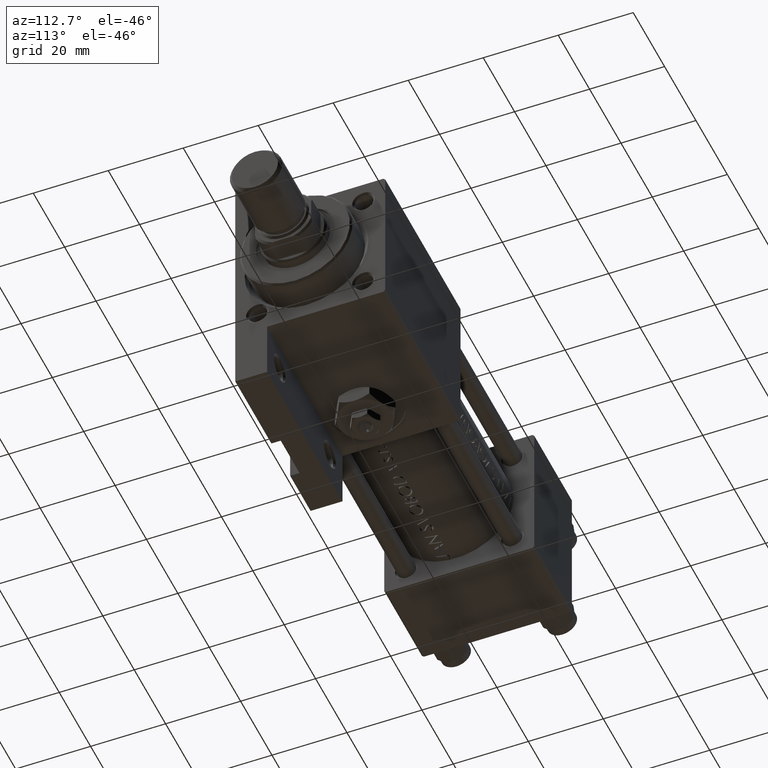
[diagram: clean part render]
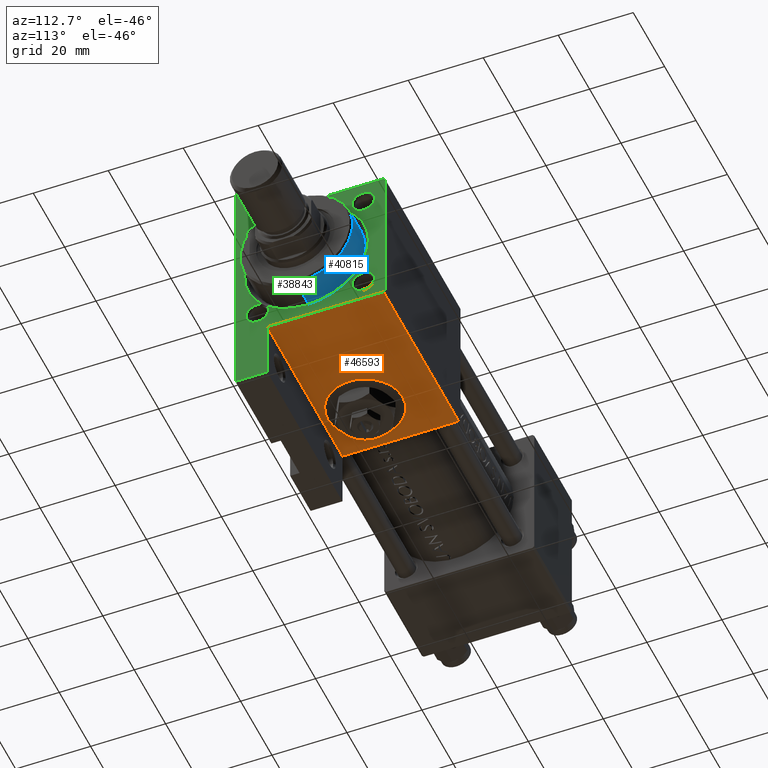
[diagram: same view with three faces highlighted in distinct colors, each labeled with its STEP entity id]
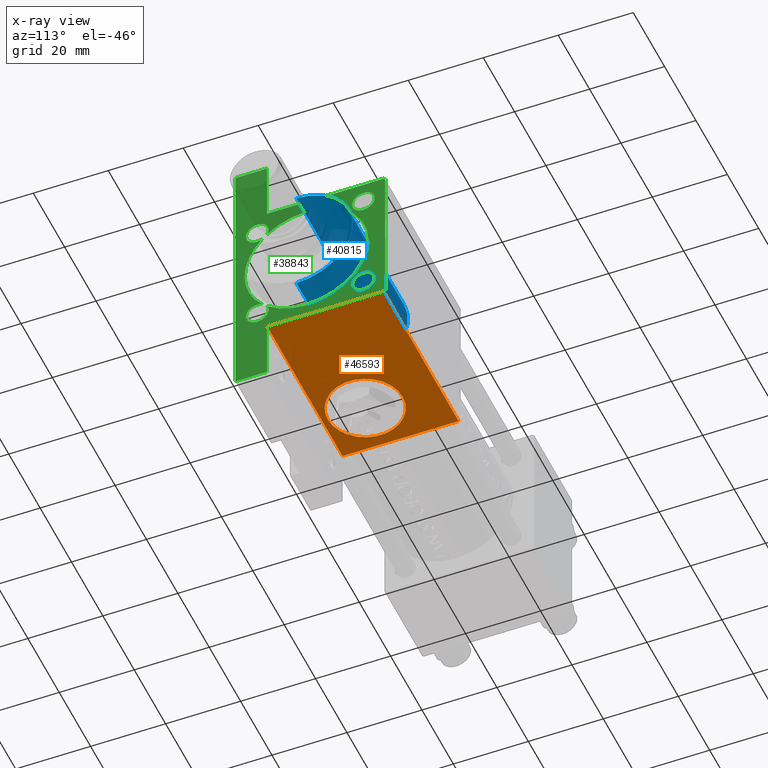
[diagram: x-ray of the same camera — body ghosted, the three highlighted faces saturated]
A machine part, auxiliary view with three faces highlighted in distinct colors.
The next image is the same camera in x-ray (body ghosted, the three faces saturated) — at least one of them is partly hidden behind the body in this view.
Their STEP definitions:

[orange] entity #46593 — the highlighted planar face has unit normal (0, 0, -1).
#1073 = CARTESIAN_POINT ( 'NONE',  ( 119.0000000000000142, 19.99999999999999645, 19.50000000000000000 ) ) ;
#1145 = EDGE_CURVE ( 'NONE', #7242, #7184, #20211, .T. ) ;
#1791 = VECTOR ( 'NONE', #31734, 1000.000000000000000 ) ;
#2823 = VERTEX_POINT ( 'NONE', #8525 ) ;
#6765 = VECTOR ( 'NONE', #43109, 1000.000000000000000 ) ;
#7184 = VERTEX_POINT ( 'NONE', #37805 ) ;
#7242 = VERTEX_POINT ( 'NONE', #30247 ) ;
#7690 = DIRECTION ( 'NONE',  ( -0.000000000000000000, 1.000000000000000000, 0.000000000000000000 ) ) ;
#8525 = CARTESIAN_POINT ( 'NONE',  ( 118.9999999999999858, 20.00000000000000000, -11.50000000000000000 ) ) ;
#8829 = CARTESIAN_POINT ( 'NONE',  ( 119.0000000000000142, 19.99999999999999645, 20.00000000000000000 ) ) ;
#9282 = ORIENTED_EDGE ( 'NONE', *, *, #1145, .T. ) ;
#9892 = DIRECTION ( 'NONE',  ( 0.000000000000000000, 1.000000000000000000, 0.000000000000000000 ) ) ;
#11179 = EDGE_LOOP ( 'NONE', ( #33234, #30928 ) ) ;
#13820 = CIRCLE ( 'NONE', #29093, 10.00000000000153300 ) ;
#14178 = EDGE_CURVE ( 'NONE', #16529, #41623, #13820, .T. ) ;
#14385 = EDGE_CURVE ( 'NONE', #7184, #2823, #35509, .T. ) ;
#14995 = CARTESIAN_POINT ( 'NONE',  ( 119.0000000000000142, 19.99999999999999645, 20.00000000000000000 ) ) ;
#16065 = LINE ( 'NONE', #23869, #48510 ) ;
#16529 = VERTEX_POINT ( 'NONE', #44127 ) ;
#16675 = FACE_OUTER_BOUND ( 'NONE', #48516, .T. ) ;
#17197 = CARTESIAN_POINT ( 'NONE',  ( 84.00000000000000000, 19.99999999999999645, 0.000000000000000000 ) ) ;
#17834 = EDGE_CURVE ( 'NONE', #2823, #49389, #16065, .T. ) ;
#20211 = LINE ( 'NONE', #1073, #6765 ) ;
#20215 = AXIS2_PLACEMENT_3D ( 'NONE', #14995, #7690, #26825 ) ;
#20559 = LINE ( 'NONE', #39675, #30952 ) ;
#20888 = EDGE_CURVE ( 'NONE', #7242, #49389, #20559, .T. ) ;
#21573 = DIRECTION ( 'NONE',  ( 0.000000000000000000, 0.000000000000000000, 1.000000000000000000 ) ) ;
#21997 = CARTESIAN_POINT ( 'NONE',  ( 84.00000000000000000, 19.99999999999999645, -10.00000000000153300 ) ) ;
#23763 = CARTESIAN_POINT ( 'NONE',  ( 71.00000000000001421, 19.99999999999999645, -11.50000000000000000 ) ) ;
#23869 = CARTESIAN_POINT ( 'NONE',  ( 71.00000000000000000, 19.99999999999995381, -11.50000000000000000 ) ) ;
#24132 = CIRCLE ( 'NONE', #49052, 10.00000000000153300 ) ;
#26825 = DIRECTION ( 'NONE',  ( 0.000000000000000000, -0.000000000000000000, 1.000000000000000000 ) ) ;
#29093 = AXIS2_PLACEMENT_3D ( 'NONE', #17197, #9892, #32550 ) ;
#30247 = CARTESIAN_POINT ( 'NONE',  ( 71.00000000000001421, 19.99999999999999645, 19.50000000000000000 ) ) ;
#30838 = PLANE ( 'NONE',  #20215 ) ;
#30928 = ORIENTED_EDGE ( 'NONE', *, *, #41300, .F. ) ;
#30952 = VECTOR ( 'NONE', #32128, 1000.000000000000000 ) ;
#31734 = DIRECTION ( 'NONE',  ( 0.000000000000000000, 0.000000000000000000, -1.000000000000000000 ) ) ;
#32128 = DIRECTION ( 'NONE',  ( 0.000000000000000000, 0.000000000000000000, -1.000000000000000000 ) ) ;
#32550 = DIRECTION ( 'NONE',  ( 0.000000000000000000, 0.000000000000000000, 1.000000000000000000 ) ) ;
#33149 = CARTESIAN_POINT ( 'NONE',  ( 84.00000000000000000, 19.99999999999999645, 0.000000000000000000 ) ) ;
#33234 = ORIENTED_EDGE ( 'NONE', *, *, #14178, .F. ) ;
#35509 = LINE ( 'NONE', #8829, #1791 ) ;
#37805 = CARTESIAN_POINT ( 'NONE',  ( 119.0000000000000142, 19.99999999999999645, 19.50000000000000000 ) ) ;
#39212 = DIRECTION ( 'NONE',  ( -1.000000000000000000, -9.396418828207708382E-16, -0.000000000000000000 ) ) ;
#39442 = ORIENTED_EDGE ( 'NONE', *, *, #14385, .T. ) ;
#39675 = CARTESIAN_POINT ( 'NONE',  ( 71.00000000000001421, 19.99999999999999645, 20.00000000000000000 ) ) ;
#41300 = EDGE_CURVE ( 'NONE', #41623, #16529, #24132, .T. ) ;
#41623 = VERTEX_POINT ( 'NONE', #21997 ) ;
#41929 = DIRECTION ( 'NONE',  ( 0.000000000000000000, 1.000000000000000000, 0.000000000000000000 ) ) ;
#42424 = FACE_BOUND ( 'NONE', #11179, .T. ) ;
#43109 = DIRECTION ( 'NONE',  ( 1.000000000000000000, 0.000000000000000000, 0.000000000000000000 ) ) ;
#44127 = CARTESIAN_POINT ( 'NONE',  ( 84.00000000000000000, 19.99999999999999645, 10.00000000000153300 ) ) ;
#46593 = ADVANCED_FACE ( 'NONE', ( #42424, #16675 ), #30838, .T. ) ;
#47608 = ORIENTED_EDGE ( 'NONE', *, *, #20888, .F. ) ;
#48510 = VECTOR ( 'NONE', #39212, 1000.000000000000000 ) ;
#48516 = EDGE_LOOP ( 'NONE', ( #47608, #9282, #39442, #49772 ) ) ;
#49052 = AXIS2_PLACEMENT_3D ( 'NONE', #33149, #41929, #21573 ) ;
#49389 = VERTEX_POINT ( 'NONE', #23763 ) ;
#49772 = ORIENTED_EDGE ( 'NONE', *, *, #17834, .T. ) ;

[blue] entity #40815 — the highlighted cylindrical surface (partial cylindrical patch) has radius 15 mm, axis along (-1, 0, 0).
#3090 = CARTESIAN_POINT ( 'NONE',  ( -15.00000000000000000, 0.000000000000000000, 0.000000000000000000 ) ) ;
#4327 = EDGE_CURVE ( 'NONE', #17856, #28728, #8166, .T. ) ;
#7636 = DIRECTION ( 'NONE',  ( -0.000000000000000000, -0.000000000000000000, -1.000000000000000000 ) ) ;
#8166 = LINE ( 'NONE', #19751, #39036 ) ;
#11649 = DIRECTION ( 'NONE',  ( -0.000000000000000000, -0.000000000000000000, -1.000000000000000000 ) ) ;
#11913 = DIRECTION ( 'NONE',  ( -1.000000000000000000, 0.000000000000000000, 0.000000000000000000 ) ) ;
#13589 = CARTESIAN_POINT ( 'NONE',  ( 15.00000000000000000, 1.836970198721029589E-15, 0.000000000000000000 ) ) ;
#17142 = ORIENTED_EDGE ( 'NONE', *, *, #4327, .F. ) ;
#17856 = VERTEX_POINT ( 'NONE', #21017 ) ;
#18519 = ORIENTED_EDGE ( 'NONE', *, *, #35587, .T. ) ;
#18954 = CARTESIAN_POINT ( 'NONE',  ( -15.00000000000000000, 0.000000000000000000, 28.69999999999999929 ) ) ;
#19751 = CARTESIAN_POINT ( 'NONE',  ( 15.00000000000000000, 1.836970198721029589E-15, 28.69999999999999929 ) ) ;
#19787 = CIRCLE ( 'NONE', #38250, 15.00000000000000000 ) ;
#20427 = EDGE_LOOP ( 'NONE', ( #17142, #33446, #18519, #29052 ) ) ;
#21017 = CARTESIAN_POINT ( 'NONE',  ( 15.00000000000000000, 1.836970198721029589E-15, 35.19999999999999574 ) ) ;
#22752 = CYLINDRICAL_SURFACE ( 'NONE', #28152, 15.00000000000000000 ) ;
#23276 = EDGE_CURVE ( 'NONE', #45799, #28728, #19787, .T. ) ;
#26517 = EDGE_CURVE ( 'NONE', #17856, #44430, #38353, .T. ) ;
#27023 = FACE_OUTER_BOUND ( 'NONE', #20427, .T. ) ;
#28152 = AXIS2_PLACEMENT_3D ( 'NONE', #38583, #7636, #11913 ) ;
#28728 = VERTEX_POINT ( 'NONE', #13589 ) ;
#29032 = DIRECTION ( 'NONE',  ( 1.000000000000000000, 0.000000000000000000, 0.000000000000000000 ) ) ;
#29052 = ORIENTED_EDGE ( 'NONE', *, *, #23276, .T. ) ;
#29516 = AXIS2_PLACEMENT_3D ( 'NONE', #43877, #47910, #29032 ) ;
#33446 = ORIENTED_EDGE ( 'NONE', *, *, #26517, .T. ) ;
#34545 = LINE ( 'NONE', #18954, #47618 ) ;
#35091 = DIRECTION ( 'NONE',  ( -0.000000000000000000, -0.000000000000000000, -1.000000000000000000 ) ) ;
#35472 = CARTESIAN_POINT ( 'NONE',  ( 0.000000000000000000, 0.000000000000000000, 0.000000000000000000 ) ) ;
#35587 = EDGE_CURVE ( 'NONE', #44430, #45799, #34545, .T. ) ;
#35976 = DIRECTION ( 'NONE',  ( 1.000000000000000000, 0.000000000000000000, 0.000000000000000000 ) ) ;
#37614 = CARTESIAN_POINT ( 'NONE',  ( -15.00000000000000000, 0.000000000000000000, 35.19999999999999574 ) ) ;
#38250 = AXIS2_PLACEMENT_3D ( 'NONE', #35472, #43761, #35976 ) ;
#38353 = CIRCLE ( 'NONE', #29516, 15.00000000000000000 ) ;
#38583 = CARTESIAN_POINT ( 'NONE',  ( 0.000000000000000000, 0.000000000000000000, 28.69999999999999929 ) ) ;
#39036 = VECTOR ( 'NONE', #35091, 1000.000000000000000 ) ;
#40815 = ADVANCED_FACE ( 'NONE', ( #27023 ), #22752, .T. ) ;
#43761 = DIRECTION ( 'NONE',  ( 0.000000000000000000, 0.000000000000000000, 1.000000000000000000 ) ) ;
#43877 = CARTESIAN_POINT ( 'NONE',  ( 0.000000000000000000, 0.000000000000000000, 35.19999999999999574 ) ) ;
#44430 = VERTEX_POINT ( 'NONE', #37614 ) ;
#45799 = VERTEX_POINT ( 'NONE', #3090 ) ;
#47618 = VECTOR ( 'NONE', #11649, 1000.000000000000000 ) ;
#47910 = DIRECTION ( 'NONE',  ( 0.000000000000000000, 0.000000000000000000, -1.000000000000000000 ) ) ;

[green] entity #38843 — the highlighted planar face has unit normal (-1, 0, -0).
#557 = AXIS2_PLACEMENT_3D ( 'NONE', #23508, #10990, #27514 ) ;
#1009 = DIRECTION ( 'NONE',  ( 0.000000000000000000, -1.000000000000000000, 0.000000000000000000 ) ) ;
#1208 = CARTESIAN_POINT ( 'NONE',  ( 119.0000000000000142, 19.49999999999999645, 20.00000000000000000 ) ) ;
#1428 = VERTEX_POINT ( 'NONE', #23934 ) ;
#1478 = DIRECTION ( 'NONE',  ( -1.000000000000000000, -0.000000000000000000, -0.000000000000000000 ) ) ;
#1791 = VECTOR ( 'NONE', #31734, 1000.000000000000000 ) ;
#1872 = ORIENTED_EDGE ( 'NONE', *, *, #11789, .T. ) ;
#1930 = ORIENTED_EDGE ( 'NONE', *, *, #28249, .T. ) ;
#1935 = VECTOR ( 'NONE', #2319, 1000.000000000000000 ) ;
#2319 = DIRECTION ( 'NONE',  ( 0.000000000000000000, 0.000000000000000000, -1.000000000000000000 ) ) ;
#2750 = CARTESIAN_POINT ( 'NONE',  ( 118.9999999999999716, 36.00000000000001421, -11.50000000000000000 ) ) ;
#2823 = VERTEX_POINT ( 'NONE', #8525 ) ;
#3192 = DIRECTION ( 'NONE',  ( 0.000000000000000000, 8.673617379884036705E-17, -1.000000000000000000 ) ) ;
#3445 = LINE ( 'NONE', #25867, #25598 ) ;
#4152 = EDGE_CURVE ( 'NONE', #13109, #10969, #19785, .T. ) ;
#4285 = DIRECTION ( 'NONE',  ( -1.000000000000000000, -0.000000000000000000, -0.000000000000000000 ) ) ;
#4948 = CIRCLE ( 'NONE', #9765, 3.000000000000031974 ) ;
#5518 = VECTOR ( 'NONE', #40192, 1000.000000000000114 ) ;
#5834 = VERTEX_POINT ( 'NONE', #22248 ) ;
#6421 = CARTESIAN_POINT ( 'NONE',  ( 119.0000000000000142, 2.020667218593134678E-15, 15.50000000000001421 ) ) ;
#6857 = DIRECTION ( 'NONE',  ( 0.000000000000000000, 0.000000000000000000, 1.000000000000000000 ) ) ;
#6961 = FACE_BOUND ( 'NONE', #44694, .T. ) ;
#7140 = CIRCLE ( 'NONE', #15992, 16.50000000000001421 ) ;
#7184 = VERTEX_POINT ( 'NONE', #37805 ) ;
#7356 = CIRCLE ( 'NONE', #19438, 3.000000000000031974 ) ;
#7432 = ORIENTED_EDGE ( 'NONE', *, *, #37758, .T. ) ;
#7979 = VERTEX_POINT ( 'NONE', #22800 ) ;
#8289 = CIRCLE ( 'NONE', #11516, 3.000000000000031974 ) ;
#8525 = CARTESIAN_POINT ( 'NONE',  ( 118.9999999999999858, 20.00000000000000000, -11.50000000000000000 ) ) ;
#8829 = CARTESIAN_POINT ( 'NONE',  ( 119.0000000000000142, 19.99999999999999645, 20.00000000000000000 ) ) ;
#8836 = EDGE_CURVE ( 'NONE', #26261, #13109, #7140, .T. ) ;
#9426 = CARTESIAN_POINT ( 'NONE',  ( 119.0000000000000142, -14.14999999999999503, -17.15000000000003766 ) ) ;
#9563 = DIRECTION ( 'NONE',  ( -1.000000000000000000, -0.000000000000000000, -0.000000000000000000 ) ) ;
#9765 = AXIS2_PLACEMENT_3D ( 'NONE', #38517, #4285, #16107 ) ;
#9978 = AXIS2_PLACEMENT_3D ( 'NONE', #23620, #28567, #39875 ) ;
#10190 = EDGE_CURVE ( 'NONE', #27740, #26261, #26862, .T. ) ;
#10323 = VECTOR ( 'NONE', #3192, 1000.000000000000000 ) ;
#10578 = EDGE_CURVE ( 'NONE', #40727, #36161, #24732, .T. ) ;
#10969 = VERTEX_POINT ( 'NONE', #35138 ) ;
#10990 = DIRECTION ( 'NONE',  ( -1.000000000000000000, -0.000000000000000000, -0.000000000000000000 ) ) ;
#11114 = CARTESIAN_POINT ( 'NONE',  ( 119.0000000000000142, -12.71526989445523448, -11.51531794627061345 ) ) ;
#11514 = ORIENTED_EDGE ( 'NONE', *, *, #43928, .T. ) ;
#11516 = AXIS2_PLACEMENT_3D ( 'NONE', #28850, #40902, #28599 ) ;
#11739 = PLANE ( 'NONE',  #24865 ) ;
#11789 = EDGE_CURVE ( 'NONE', #34919, #12266, #21257, .T. ) ;
#11809 = DIRECTION ( 'NONE',  ( -1.000000000000000000, -0.000000000000000000, -0.000000000000000000 ) ) ;
#11898 = VERTEX_POINT ( 'NONE', #12674 ) ;
#12266 = VERTEX_POINT ( 'NONE', #15411 ) ;
#12300 = VERTEX_POINT ( 'NONE', #20173 ) ;
#12674 = CARTESIAN_POINT ( 'NONE',  ( 119.0000000000000142, 14.14999999999999858, 17.15000000000003411 ) ) ;
#12775 = VECTOR ( 'NONE', #20324, 1000.000000000000114 ) ;
#13008 = DIRECTION ( 'NONE',  ( -1.000000000000000000, -0.000000000000000000, -0.000000000000000000 ) ) ;
#13030 = DIRECTION ( 'NONE',  ( -1.000000000000000000, -0.000000000000000000, -0.000000000000000000 ) ) ;
#13109 = VERTEX_POINT ( 'NONE', #40161 ) ;
#13145 = CARTESIAN_POINT ( 'NONE',  ( 118.9999999999999716, 36.00000000000001421, -11.50000000000000000 ) ) ;
#13393 = DIRECTION ( 'NONE',  ( 8.673617379884029556E-16, -1.000000000000000000, 0.000000000000000000 ) ) ;
#13497 = ORIENTED_EDGE ( 'NONE', *, *, #16217, .T. ) ;
#13768 = EDGE_CURVE ( 'NONE', #5834, #23788, #25859, .T. ) ;
#14112 = ORIENTED_EDGE ( 'NONE', *, *, #32244, .T. ) ;
#14385 = EDGE_CURVE ( 'NONE', #7184, #2823, #35509, .T. ) ;
#14509 = DIRECTION ( 'NONE',  ( -0.000000000000000000, 0.000000000000000000, 1.000000000000000000 ) ) ;
#14650 = CIRCLE ( 'NONE', #44365, 16.50000000000001421 ) ;
#14664 = DIRECTION ( 'NONE',  ( -1.000000000000000000, -0.000000000000000000, -0.000000000000000000 ) ) ;
#15072 = CARTESIAN_POINT ( 'NONE',  ( 119.0000000000000142, -19.50000000000003197, 19.99999999999999645 ) ) ;
#15150 = ORIENTED_EDGE ( 'NONE', *, *, #15314, .T. ) ;
#15232 = ORIENTED_EDGE ( 'NONE', *, *, #4152, .T. ) ;
#15269 = LINE ( 'NONE', #37685, #10323 ) ;
#15314 = EDGE_CURVE ( 'NONE', #23788, #12300, #31559, .T. ) ;
#15411 = CARTESIAN_POINT ( 'NONE',  ( 119.0000000000000142, -14.14999999999999680, 11.14999999999996838 ) ) ;
#15435 = LINE ( 'NONE', #19467, #37023 ) ;
#15739 = ORIENTED_EDGE ( 'NONE', *, *, #46941, .T. ) ;
#15992 = AXIS2_PLACEMENT_3D ( 'NONE', #32132, #13008, #28361 ) ;
#16107 = DIRECTION ( 'NONE',  ( 0.000000000000000000, 0.000000000000000000, 1.000000000000000000 ) ) ;
#16128 = VERTEX_POINT ( 'NONE', #17643 ) ;
#16150 = ORIENTED_EDGE ( 'NONE', *, *, #36633, .T. ) ;
#16217 = EDGE_CURVE ( 'NONE', #1428, #11898, #8289, .T. ) ;
#17345 = AXIS2_PLACEMENT_3D ( 'NONE', #40899, #33112, #48452 ) ;
#17643 = CARTESIAN_POINT ( 'NONE',  ( 119.0000000000000142, -20.00000000000000355, 19.50000000000002487 ) ) ;
#18061 = AXIS2_PLACEMENT_3D ( 'NONE', #20610, #1478, #24637 ) ;
#18556 = DIRECTION ( 'NONE',  ( -0.000000000000000000, -1.000000000000000000, -0.000000000000000000 ) ) ;
#19285 = CARTESIAN_POINT ( 'NONE',  ( 119.0000000000000142, 0.000000000000000000, 0.000000000000000000 ) ) ;
#19324 = AXIS2_PLACEMENT_3D ( 'NONE', #43728, #13030, #20092 ) ;
#19438 = AXIS2_PLACEMENT_3D ( 'NONE', #36732, #9563, #39749 ) ;
#19467 = CARTESIAN_POINT ( 'NONE',  ( 118.9999999999999716, 36.00000000000001421, -11.50000000000000000 ) ) ;
#19785 = CIRCLE ( 'NONE', #17345, 3.000000000000031974 ) ;
#20015 = CARTESIAN_POINT ( 'NONE',  ( 119.0000000000000000, -36.00000000000001421, -20.00000000000000000 ) ) ;
#20026 = CARTESIAN_POINT ( 'NONE',  ( 119.0000000000000142, 0.000000000000000000, -1.000000000000000888 ) ) ;
#20092 = DIRECTION ( 'NONE',  ( 0.000000000000000000, 0.000000000000000000, 1.000000000000000000 ) ) ;
#20173 = CARTESIAN_POINT ( 'NONE',  ( 119.0000000000000142, -14.14999999999999503, -11.14999999999997371 ) ) ;
#20220 = CIRCLE ( 'NONE', #19324, 3.000000000000031974 ) ;
#20324 = DIRECTION ( 'NONE',  ( -0.000000000000000000, -0.7071067811865474617, -0.7071067811865474617 ) ) ;
#20610 = CARTESIAN_POINT ( 'NONE',  ( 119.0000000000000142, -14.14999999999999680, 14.15000000000000036 ) ) ;
#21131 = CARTESIAN_POINT ( 'NONE',  ( 119.0000000000000142, 19.99999999999999645, -20.00000000000000000 ) ) ;
#21257 = CIRCLE ( 'NONE', #18061, 3.000000000000031974 ) ;
#21765 = CARTESIAN_POINT ( 'NONE',  ( 119.0000000000000142, 19.49999999999999645, 20.00000000000000000 ) ) ;
#21798 = ORIENTED_EDGE ( 'NONE', *, *, #34695, .T. ) ;
#21866 = ORIENTED_EDGE ( 'NONE', *, *, #44995, .F. ) ;
#22248 = CARTESIAN_POINT ( 'NONE',  ( 119.0000000000000142, -11.41741110086830169, -12.91187322606187671 ) ) ;
#22467 = CARTESIAN_POINT ( 'NONE',  ( 119.0000000000000142, 19.99999999999999645, 20.00000000000000000 ) ) ;
#22800 = CARTESIAN_POINT ( 'NONE',  ( 119.0000000000000142, -20.00000000000000000, -11.50000000000000355 ) ) ;
#23311 = DIRECTION ( 'NONE',  ( -1.000000000000000000, 0.000000000000000000, -0.000000000000000000 ) ) ;
#23508 = CARTESIAN_POINT ( 'NONE',  ( 119.0000000000000142, -14.14999999999999503, -14.15000000000000391 ) ) ;
#23567 = AXIS2_PLACEMENT_3D ( 'NONE', #31712, #44280, #40242 ) ;
#23620 = CARTESIAN_POINT ( 'NONE',  ( 119.0000000000000142, 0.000000000000000000, -1.000000000000000888 ) ) ;
#23788 = VERTEX_POINT ( 'NONE', #9426 ) ;
#23858 = CARTESIAN_POINT ( 'NONE',  ( 119.0000000000000142, -20.00000000000000355, 19.50000000000002487 ) ) ;
#23934 = CARTESIAN_POINT ( 'NONE',  ( 119.0000000000000142, 14.14999999999999858, 11.14999999999996838 ) ) ;
#24133 = ORIENTED_EDGE ( 'NONE', *, *, #41018, .T. ) ;
#24400 = CARTESIAN_POINT ( 'NONE',  ( 119.0000000000000142, 14.14999999999999858, -17.15000000000003411 ) ) ;
#24637 = DIRECTION ( 'NONE',  ( 0.000000000000000000, 0.000000000000000000, 1.000000000000000000 ) ) ;
#24732 = LINE ( 'NONE', #25967, #1935 ) ;
#24787 = CIRCLE ( 'NONE', #44891, 16.50000000000001421 ) ;
#24865 = AXIS2_PLACEMENT_3D ( 'NONE', #19285, #23311, #14509 ) ;
#25456 = VERTEX_POINT ( 'NONE', #21765 ) ;
#25598 = VECTOR ( 'NONE', #18556, 1000.000000000000000 ) ;
#25800 = CARTESIAN_POINT ( 'NONE',  ( 119.0000000000000142, -14.14999999999999503, -14.15000000000000391 ) ) ;
#25859 = CIRCLE ( 'NONE', #26692, 3.000000000000031974 ) ;
#25867 = CARTESIAN_POINT ( 'NONE',  ( 119.0000000000000000, -36.00000000000001421, -11.50000000000000000 ) ) ;
#25967 = CARTESIAN_POINT ( 'NONE',  ( 119.0000000000000000, -36.00000000000001421, -11.50000000000000000 ) ) ;
#26075 = ORIENTED_EDGE ( 'NONE', *, *, #47288, .T. ) ;
#26261 = VERTEX_POINT ( 'NONE', #6421 ) ;
#26580 = VERTEX_POINT ( 'NONE', #48636 ) ;
#26692 = AXIS2_PLACEMENT_3D ( 'NONE', #34709, #11809, #42501 ) ;
#26862 = CIRCLE ( 'NONE', #9978, 16.50000000000001421 ) ;
#27514 = DIRECTION ( 'NONE',  ( 0.000000000000000000, 0.000000000000000000, 1.000000000000000000 ) ) ;
#27684 = ORIENTED_EDGE ( 'NONE', *, *, #8836, .T. ) ;
#27740 = VERTEX_POINT ( 'NONE', #11114 ) ;
#27850 = ORIENTED_EDGE ( 'NONE', *, *, #33276, .T. ) ;
#27968 = VERTEX_POINT ( 'NONE', #15072 ) ;
#28249 = EDGE_CURVE ( 'NONE', #12300, #27740, #33500, .T. ) ;
#28361 = DIRECTION ( 'NONE',  ( 0.000000000000000000, 0.000000000000000000, 1.000000000000000000 ) ) ;
#28369 = CIRCLE ( 'NONE', #23567, 3.000000000000031974 ) ;
#28567 = DIRECTION ( 'NONE',  ( -1.000000000000000000, -0.000000000000000000, -0.000000000000000000 ) ) ;
#28599 = DIRECTION ( 'NONE',  ( 0.000000000000000000, 0.000000000000000000, 1.000000000000000000 ) ) ;
#28850 = CARTESIAN_POINT ( 'NONE',  ( 119.0000000000000142, 14.14999999999999858, 14.15000000000000036 ) ) ;
#29098 = VECTOR ( 'NONE', #30012, 1000.000000000000000 ) ;
#29762 = LINE ( 'NONE', #22467, #29098 ) ;
#29819 = DIRECTION ( 'NONE',  ( 0.000000000000000000, 0.000000000000000000, 1.000000000000000000 ) ) ;
#30012 = DIRECTION ( 'NONE',  ( 0.000000000000000000, -1.000000000000000000, -8.673617379884035472E-17 ) ) ;
#30550 = VECTOR ( 'NONE', #13393, 1000.000000000000000 ) ;
#31142 = EDGE_CURVE ( 'NONE', #42516, #36161, #32459, .T. ) ;
#31559 = CIRCLE ( 'NONE', #34801, 3.000000000000031974 ) ;
#31712 = CARTESIAN_POINT ( 'NONE',  ( 119.0000000000000142, 14.14999999999999858, -14.15000000000000036 ) ) ;
#31734 = DIRECTION ( 'NONE',  ( 0.000000000000000000, 0.000000000000000000, -1.000000000000000000 ) ) ;
#32023 = CARTESIAN_POINT ( 'NONE',  ( 118.9999999999999716, 36.00000000000001421, -20.00000000000000000 ) ) ;
#32132 = CARTESIAN_POINT ( 'NONE',  ( 119.0000000000000142, 0.000000000000000000, -1.000000000000000888 ) ) ;
#32200 = ORIENTED_EDGE ( 'NONE', *, *, #10578, .T. ) ;
#32244 = EDGE_CURVE ( 'NONE', #7184, #25456, #35937, .T. ) ;
#32459 = LINE ( 'NONE', #21131, #34363 ) ;
#32828 = CARTESIAN_POINT ( 'NONE',  ( 119.0000000000000000, -36.00000000000001421, -11.50000000000000000 ) ) ;
#33112 = DIRECTION ( 'NONE',  ( -1.000000000000000000, -0.000000000000000000, -0.000000000000000000 ) ) ;
#33248 = EDGE_CURVE ( 'NONE', #16128, #7979, #15269, .T. ) ;
#33276 = EDGE_CURVE ( 'NONE', #7979, #40727, #3445, .T. ) ;
#33500 = CIRCLE ( 'NONE', #557, 3.000000000000031974 ) ;
#33552 = CARTESIAN_POINT ( 'NONE',  ( 119.0000000000000142, 0.000000000000000000, -1.000000000000000888 ) ) ;
#34143 = FACE_BOUND ( 'NONE', #35331, .T. ) ;
#34363 = VECTOR ( 'NONE', #1009, 1000.000000000000000 ) ;
#34454 = LINE ( 'NONE', #2750, #30550 ) ;
#34609 = ORIENTED_EDGE ( 'NONE', *, *, #14385, .F. ) ;
#34681 = EDGE_CURVE ( 'NONE', #25456, #27968, #29762, .T. ) ;
#34695 = EDGE_CURVE ( 'NONE', #26580, #44445, #14650, .T. ) ;
#34709 = CARTESIAN_POINT ( 'NONE',  ( 119.0000000000000142, -14.14999999999999503, -14.15000000000000391 ) ) ;
#34801 = AXIS2_PLACEMENT_3D ( 'NONE', #25800, #49182, #29819 ) ;
#34919 = VERTEX_POINT ( 'NONE', #42784 ) ;
#35138 = CARTESIAN_POINT ( 'NONE',  ( 119.0000000000000142, 14.14999999999999858, -11.14999999999997016 ) ) ;
#35331 = EDGE_LOOP ( 'NONE', ( #13497, #38442 ) ) ;
#35509 = LINE ( 'NONE', #8829, #1791 ) ;
#35937 = LINE ( 'NONE', #1208, #5518 ) ;
#36161 = VERTEX_POINT ( 'NONE', #20015 ) ;
#36633 = EDGE_CURVE ( 'NONE', #10969, #45237, #28369, .T. ) ;
#36732 = CARTESIAN_POINT ( 'NONE',  ( 119.0000000000000142, 14.14999999999999858, -14.15000000000000036 ) ) ;
#37023 = VECTOR ( 'NONE', #39084, 1000.000000000000000 ) ;
#37685 = CARTESIAN_POINT ( 'NONE',  ( 119.0000000000000142, -20.00000000000000355, 19.99999999999999645 ) ) ;
#37758 = EDGE_CURVE ( 'NONE', #27968, #16128, #39441, .T. ) ;
#37805 = CARTESIAN_POINT ( 'NONE',  ( 119.0000000000000142, 19.99999999999999645, 19.50000000000000000 ) ) ;
#38163 = DIRECTION ( 'NONE',  ( -1.000000000000000000, -0.000000000000000000, -0.000000000000000000 ) ) ;
#38361 = CARTESIAN_POINT ( 'NONE',  ( 119.0000000000000142, 0.000000000000000000, -17.50000000000001421 ) ) ;
#38442 = ORIENTED_EDGE ( 'NONE', *, *, #46056, .T. ) ;
#38517 = CARTESIAN_POINT ( 'NONE',  ( 119.0000000000000142, 14.14999999999999858, 14.15000000000000036 ) ) ;
#38843 = ADVANCED_FACE ( 'NONE', ( #34143, #6961, #41429, #49478 ), #11739, .F. ) ;
#39047 = ORIENTED_EDGE ( 'NONE', *, *, #31142, .F. ) ;
#39084 = DIRECTION ( 'NONE',  ( 0.000000000000000000, 0.000000000000000000, -1.000000000000000000 ) ) ;
#39441 = LINE ( 'NONE', #23858, #12775 ) ;
#39749 = DIRECTION ( 'NONE',  ( 0.000000000000000000, 0.000000000000000000, 1.000000000000000000 ) ) ;
#39875 = DIRECTION ( 'NONE',  ( 0.000000000000000000, 0.000000000000000000, 1.000000000000000000 ) ) ;
#40161 = CARTESIAN_POINT ( 'NONE',  ( 119.0000000000000142, 12.71526989445523803, -11.51531794627060989 ) ) ;
#40192 = DIRECTION ( 'NONE',  ( 0.000000000000000000, -0.7071067811865474617, 0.7071067811865474617 ) ) ;
#40242 = DIRECTION ( 'NONE',  ( 0.000000000000000000, 0.000000000000000000, 1.000000000000000000 ) ) ;
#40672 = EDGE_LOOP ( 'NONE', ( #34609, #14112, #43372, #7432, #46624, #27850, #32200, #39047, #21866, #24133 ) ) ;
#40727 = VERTEX_POINT ( 'NONE', #32828 ) ;
#40899 = CARTESIAN_POINT ( 'NONE',  ( 119.0000000000000142, 14.14999999999999858, -14.15000000000000036 ) ) ;
#40902 = DIRECTION ( 'NONE',  ( -1.000000000000000000, -0.000000000000000000, -0.000000000000000000 ) ) ;
#41018 = EDGE_CURVE ( 'NONE', #43271, #2823, #34454, .T. ) ;
#41429 = FACE_BOUND ( 'NONE', #47723, .T. ) ;
#42501 = DIRECTION ( 'NONE',  ( 0.000000000000000000, 0.000000000000000000, 1.000000000000000000 ) ) ;
#42516 = VERTEX_POINT ( 'NONE', #32023 ) ;
#42784 = CARTESIAN_POINT ( 'NONE',  ( 119.0000000000000142, -14.14999999999999680, 17.15000000000003411 ) ) ;
#43271 = VERTEX_POINT ( 'NONE', #13145 ) ;
#43372 = ORIENTED_EDGE ( 'NONE', *, *, #34681, .T. ) ;
#43728 = CARTESIAN_POINT ( 'NONE',  ( 119.0000000000000142, -14.14999999999999680, 14.15000000000000036 ) ) ;
#43928 = EDGE_CURVE ( 'NONE', #12266, #34919, #20220, .T. ) ;
#44280 = DIRECTION ( 'NONE',  ( -1.000000000000000000, -0.000000000000000000, -0.000000000000000000 ) ) ;
#44365 = AXIS2_PLACEMENT_3D ( 'NONE', #33552, #14664, #6857 ) ;
#44445 = VERTEX_POINT ( 'NONE', #38361 ) ;
#44694 = EDGE_LOOP ( 'NONE', ( #11514, #1872 ) ) ;
#44891 = AXIS2_PLACEMENT_3D ( 'NONE', #20026, #38163, #49715 ) ;
#44995 = EDGE_CURVE ( 'NONE', #43271, #42516, #15435, .T. ) ;
#45237 = VERTEX_POINT ( 'NONE', #24400 ) ;
#45592 = ORIENTED_EDGE ( 'NONE', *, *, #10190, .T. ) ;
#46056 = EDGE_CURVE ( 'NONE', #11898, #1428, #4948, .T. ) ;
#46624 = ORIENTED_EDGE ( 'NONE', *, *, #33248, .T. ) ;
#46941 = EDGE_CURVE ( 'NONE', #45237, #26580, #7356, .T. ) ;
#47288 = EDGE_CURVE ( 'NONE', #44445, #5834, #24787, .T. ) ;
#47333 = ORIENTED_EDGE ( 'NONE', *, *, #13768, .T. ) ;
#47723 = EDGE_LOOP ( 'NONE', ( #21798, #26075, #47333, #15150, #1930, #45592, #27684, #15232, #16150, #15739 ) ) ;
#48452 = DIRECTION ( 'NONE',  ( 0.000000000000000000, 0.000000000000000000, 1.000000000000000000 ) ) ;
#48636 = CARTESIAN_POINT ( 'NONE',  ( 119.0000000000000142, 11.41741110086830346, -12.91187322606187315 ) ) ;
#49182 = DIRECTION ( 'NONE',  ( -1.000000000000000000, -0.000000000000000000, -0.000000000000000000 ) ) ;
#49478 = FACE_OUTER_BOUND ( 'NONE', #40672, .T. ) ;
#49715 = DIRECTION ( 'NONE',  ( 0.000000000000000000, 0.000000000000000000, 1.000000000000000000 ) ) ;